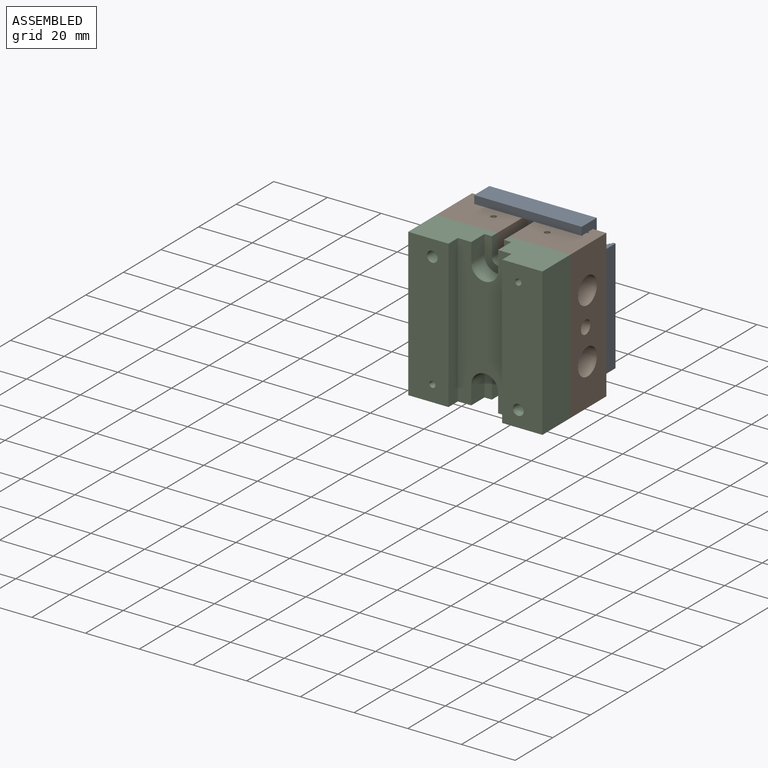
[diagram: assembled view]
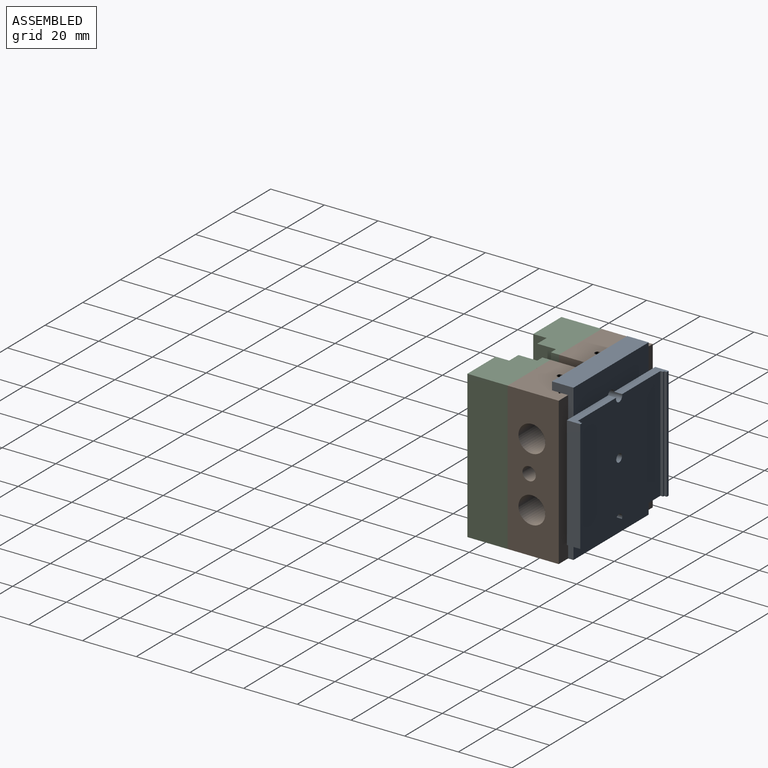
[diagram: assembled view, second angle]
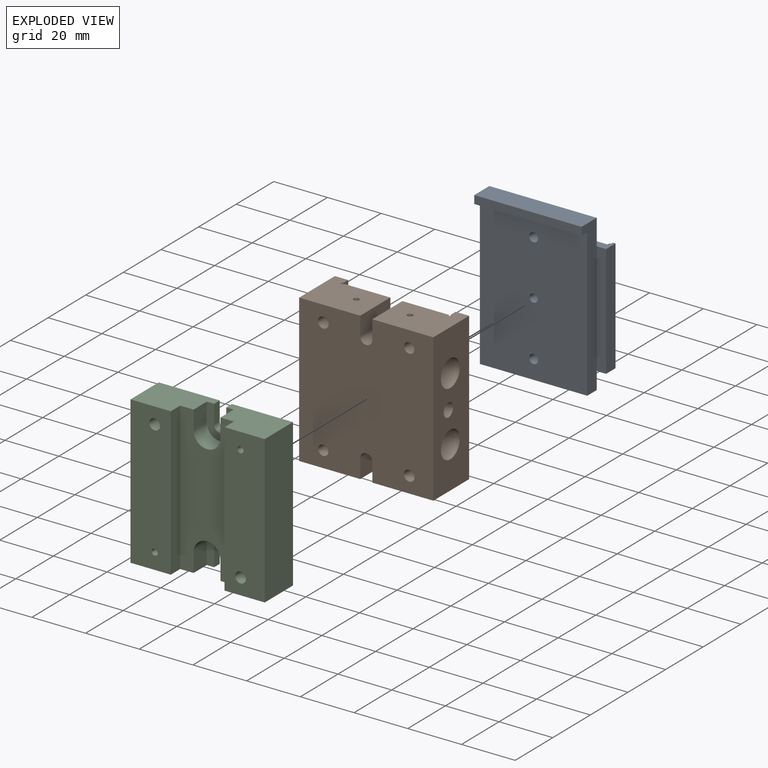
[diagram: exploded view]
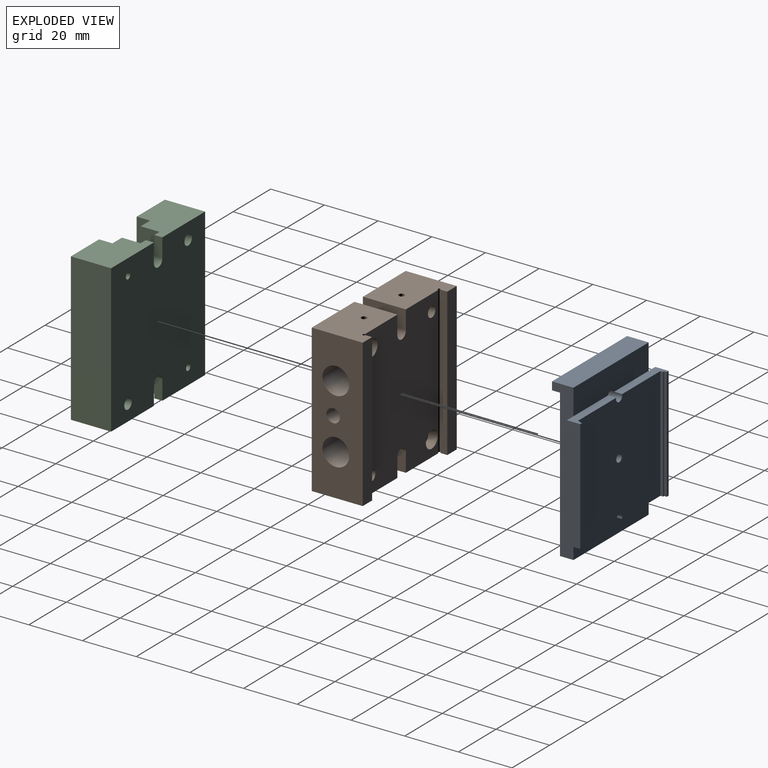
[diagram: exploded view, second angle]
ASSEMBLY  parts=3 mates=2
PART A: 29 faces, bbox 47x13x58 mm
  f0: plane 21.96x5mm, normal (0,0,-1), area 68.4mm2, adj f4,f5,f7,f8,f19,f20,f22,f23
  f1: plane 21.9x5mm, normal (0,0,1), area 68.2mm2, adj f4,f5,f7,f14,f19,f20,f22,f23
  f2: plane 21.96x5mm, normal (0,0,-1), area 68.4mm2, adj f3,f7,f8,f17,f18,f21,f24,f25
  f3: plane 42x1mm, normal (-1,0,0), area 42mm2, adj f2,f6,f7,f24
  f4: plane 42x1mm, normal (1,0,0), area 42mm2, adj f0,f1,f7,f22
  f5: plane 42x1mm, normal (0,1,0), area 42mm2, adj f0,f1,f19,f23
  f6: plane 21.9x5mm, normal (0,0,1), area 68.2mm2, adj f3,f7,f14,f17,f18,f21,f24,f25
  f7: plane 43.9x42mm, normal (0,1,0), area 1824.9mm2, adj f0,f1,f2,f3,f4,f6,f26,f27
  f8: plane 40x6.4mm, normal (0,1,0), area 253.7mm2, adj f0,f2,f10,f11,f12,f28
  f9: plane 40x8mm, normal (0,0,1), area 320mm2, adj f10,f12,f14,f16
  f10: plane 58x8mm, normal (-1,0,0), area 299mm2, adj f8,f9,f11,f13,f14,f15,f16,f20
  f11: plane 40x5mm, normal (0,0,-1), area 200mm2, adj f8,f10,f12,f13
  f12: plane 58x8mm, normal (1,0,0), area 299mm2, adj f8,f9,f11,f13,f14,f15,f16,f17
  f13: plane 55x40mm, normal (0,-1,0), area 2175.8mm2, adj f10,f11,f12,f15,f26,f27,f28
  f14: plane 40x9.6mm, normal (0,1,0), area 381mm2, adj f1,f6,f9,f10,f12,f26
  f15: plane 40x3mm, normal (0,0,-1), area 120mm2, adj f10,f12,f13,f16
  f16: plane 40x3mm, normal (0,-1,0), area 120mm2, adj f9,f10,f12,f15
  f17: plane 42x3.5mm, normal (0,-1,0), area 147mm2, adj f2,f6,f12,f18
  f18: plane 42x5mm, normal (1,0,0), area 210mm2, adj f2,f6,f17,f21
  f19: plane 42x5mm, normal (-1,0,0), area 210mm2, adj f0,f1,f5,f20
  f20: plane 42x3.5mm, normal (0,-1,0), area 147mm2, adj f0,f1,f10,f19
  f21: plane 42x1mm, normal (0,1,0), area 42mm2, adj f2,f6,f18,f25
  f22: plane 42x0.55mm, normal (0,1,0), area 23.1mm2, adj f0,f1,f4,f23
  f23: plane 42x1mm, normal (1,0,0), area 42mm2, adj f0,f1,f5,f22
  f24: plane 42x0.55mm, normal (0,1,0), area 23.1mm2, adj f2,f3,f6,f25
  f25: plane 42x1mm, normal (-1,0,0), area 42mm2, adj f2,f6,f21,f24
  f26: cylinder r=1.65mm len=8mm, axis (0,-1,0), area 69.8mm2, adj f1,f6,f7,f13,f14
  f27: cylinder r=1.5mm len=8mm, axis (0,-1,0), area 75.4mm2, adj f7,f13
  f28: cylinder r=1.65mm len=8mm, axis (0,-1,0), area 71.1mm2, adj f0,f2,f7,f8,f13
PART B: 36 faces, bbox 50x19x55 mm
  f0: plane 22.75x19mm, normal (0,0,-1), area 375.1mm2, adj f4,f6,f7,f15,f18,f19,f30,f35
  f1: plane 22.75x19mm, normal (0,0,-1), area 375.1mm2, adj f4,f9,f10,f15,f16,f17,f31,f34
  f2: cylinder r=1.9mm len=12.5mm, axis (0,-1,0), area 149.2mm2, adj f15,f25
  f3: cylinder r=1.9mm len=12.5mm, axis (0,-1,0), area 149.2mm2, adj f15,f23
  f4: plane 55x39mm, normal (0,1,0), area 1978.6mm2, adj f0,f1,f5,f7,f8,f9,f11,f12
  f5: plane 22.75x19mm, normal (0,0,1), area 375.1mm2, adj f4,f6,f14,f15,f18,f19,f30,f33
  f6: plane 55x19mm, normal (-1,0,0), area 887.9mm2, adj f0,f5,f15,f19,f26,f27
  f7: plane 16x7mm, normal (1,0,0), area 112mm2, adj f0,f4,f8,f15
  f8: cylinder r=2.25mm len=16mm, axis (0,1,0), area 113.1mm2, adj f4,f7,f9,f15
  f9: plane 16x7mm, normal (-1,0,0), area 112mm2, adj f1,f4,f8,f15
  f10: plane 55x19mm, normal (1,0,0), area 868.3mm2, adj f1,f11,f15,f17,f26,f27,f28
  f11: plane 22.75x19mm, normal (0,0,1), area 375.1mm2, adj f4,f10,f12,f15,f16,f17,f31,f32
  f12: plane 16x7mm, normal (-1,0,0), area 112mm2, adj f4,f11,f13,f15
  f13: cylinder r=2.25mm len=16mm, axis (0,1,0), area 113.1mm2, adj f4,f12,f14,f15
  f14: plane 16x7mm, normal (1,0,0), area 112mm2, adj f4,f5,f13,f15
  f15: plane 55x50mm, normal (0,-1,0), area 2623.3mm2, adj f0,f1,f2,f3,f5,f6,f7,f8
  f16: plane 55x2.5mm, normal (-1,0,0), area 137.5mm2, adj f1,f11,f17,f31
  f17: plane 55x5mm, normal (0,1,0), area 275mm2, adj f1,f10,f11,f16
  f18: plane 55x2.5mm, normal (1,0,0), area 137.5mm2, adj f0,f5,f19,f30
  f19: plane 55x5mm, normal (0,1,0), area 275mm2, adj f0,f5,f6,f18
  f20: cylinder r=2mm len=16mm, axis (0,-1,0), area 201.1mm2, adj f4,f15
  f21: cylinder r=2mm len=16mm, axis (0,-1,0), area 201.1mm2, adj f4,f15
  f22: cylinder r=3.15mm len=6.3mm, axis (0,1,0), area 69.3mm2, adj f4,f23
  f23: plane 6.3x6.3mm, normal (0,1,0), area 19.8mm2, adj f3,f22
  f24: cylinder r=3.15mm len=6.3mm, axis (0,1,0), area 69.3mm2, adj f4,f25
  f25: plane 6.3x6.3mm, normal (0,1,0), area 19.8mm2, adj f2,f24
  f26: cylinder r=5mm len=50mm, axis (1,0,0), area 1564.2mm2, adj f6,f10,f32,f33
  f27: cylinder r=5mm len=50mm, axis (1,0,0), area 1564.2mm2, adj f6,f10,f34,f35
  f28: cylinder r=2.5mm len=25mm, axis (1,0,0), area 392.7mm2, adj f10,f29
  f29: plane 5x5mm, normal (1,0,0), area 19.6mm2, adj f28
  f30: cylinder r=0.5mm len=55mm, axis (0,0,-1), area 129.6mm2, adj f0,f4,f5,f18
  f31: cylinder r=0.5mm len=55mm, axis (0,0,-1), area 129.6mm2, adj f1,f4,f11,f16
  f32: cylinder r=1.03mm len=10.61mm, axis (0,0,1), area 68mm2, adj f11,f26
  f33: cylinder r=1.03mm len=10.61mm, axis (0,0,1), area 68mm2, adj f5,f26
  f34: cylinder r=1.03mm len=10.61mm, axis (0,0,-1), area 68mm2, adj f1,f27
  f35: cylinder r=1.03mm len=10.61mm, axis (0,0,-1), area 68mm2, adj f0,f27
PART C: 30 faces, bbox 55x50x15 mm
  f0: plane 22.75x15mm, normal (-1,0,0), area 283.2mm2, adj f2,f7,f9,f12,f15,f17,f20,f21
  f1: plane 22.75x15mm, normal (1,0,0), area 283.2mm2, adj f2,f3,f9,f10,f14,f16,f22,f25
  f2: plane 55x20mm, normal (0,0,1), area 881.5mm2, adj f0,f1,f11,f13,f16,f17,f18,f19
  f3: plane 7x3mm, normal (0,-1,0), area 21mm2, adj f1,f5,f9,f25
  f4: plane 7x3mm, normal (0,1,0), area 21mm2, adj f5,f9,f13,f25
  f5: cylinder r=2.25mm len=4.5mm, axis (0,0,1), area 21.2mm2, adj f3,f4,f9,f25
  f6: plane 7x3mm, normal (0,-1,0), area 21mm2, adj f8,f9,f11,f21
  f7: plane 7x3mm, normal (0,1,0), area 21mm2, adj f0,f8,f9,f21
  f8: cylinder r=2.25mm len=4.5mm, axis (0,0,1), area 21.2mm2, adj f6,f7,f9,f21
  f9: plane 55x50mm, normal (0,0,-1), area 2637.7mm2, adj f0,f1,f3,f4,f5,f6,f7,f8
  f10: plane 55x15mm, normal (0,0,1), area 808.3mm2, adj f1,f11,f14,f16,f28,f29
  f11: plane 22.75x15mm, normal (-1,0,0), area 283.2mm2, adj f2,f6,f9,f10,f14,f16,f19,f21
  f12: plane 55x15mm, normal (0,-1,0), area 825mm2, adj f0,f9,f13,f15
  f13: plane 22.75x15mm, normal (1,0,0), area 283.2mm2, adj f2,f4,f9,f12,f15,f17,f24,f25
  f14: plane 55x15mm, normal (0,1,0), area 825mm2, adj f1,f9,f10,f11
  f15: plane 55x15mm, normal (0,0,1), area 808.3mm2, adj f0,f12,f13,f17,f26,f27
  f16: plane 55x5mm, normal (0,-1,0), area 275mm2, adj f1,f2,f10,f11
  f17: plane 55x5mm, normal (0,1,0), area 275mm2, adj f0,f2,f13,f15
  f18: cylinder r=5mm len=10mm, axis (0,0,1), area 110mm2, adj f2,f19,f20,f21
  f19: plane 7x7mm, normal (0,-1,0), area 49mm2, adj f2,f11,f18,f21
  f20: plane 7x7mm, normal (0,1,0), area 49mm2, adj f0,f2,f18,f21
  f21: plane 12x10mm, normal (0,0,1), area 69.8mm2, adj f0,f6,f7,f8,f11,f18,f19,f20
  f22: plane 7x7mm, normal (0,-1,0), area 49mm2, adj f1,f2,f23,f25
  f23: cylinder r=5mm len=10mm, axis (0,0,1), area 110mm2, adj f2,f22,f24,f25
  f24: plane 7x7mm, normal (0,1,0), area 49mm2, adj f2,f13,f23,f25
  f25: plane 12x10mm, normal (0,0,1), area 69.8mm2, adj f1,f3,f4,f5,f13,f22,f23,f24
  f26: cylinder r=2mm len=15mm, axis (0,0,1), area 188.5mm2, adj f9,f15
  f27: cylinder r=1.15mm len=15mm, axis (0,0,1), area 108.4mm2, adj f9,f15
  f28: cylinder r=2mm len=15mm, axis (0,0,1), area 188.5mm2, adj f9,f10
  f29: cylinder r=1.15mm len=15mm, axis (0,0,1), area 108.4mm2, adj f9,f10
PLACE A t=(8.68,70.92,83.1)mm
PLACE B t=(8.68,65.92,81.6)mm
PLACE C rot(axis=(0.58,0.58,-0.58),120deg) t=(-16.32,49.92,109.1)mm
MATE fastened A.f26 <-> B.f13  axis (0,-1,0) through (8.68,65.92,102.1)mm
MATE fastened C.f26 <-> B.f20  axis (0,1,0) through (-7.32,49.92,103.1)mm
